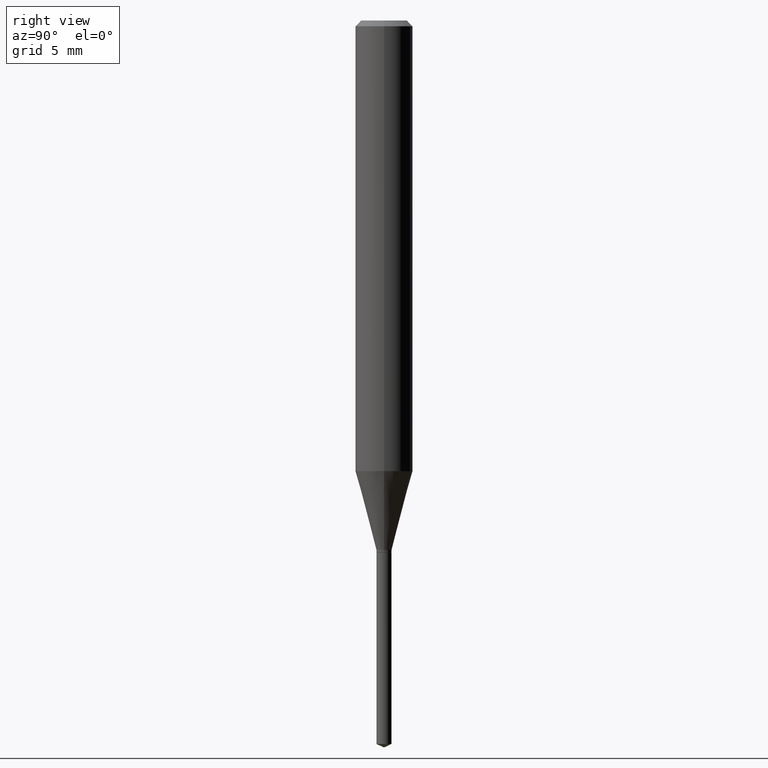
[diagram: clean part render]
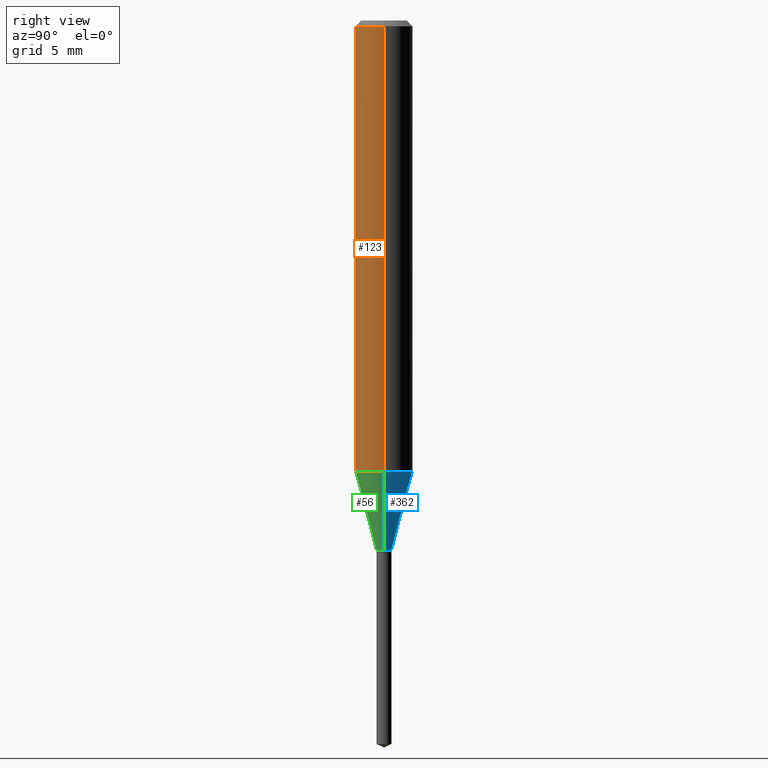
[diagram: same view with three faces highlighted in distinct colors, each labeled with its STEP entity id]
A machine part, right view with three faces highlighted in distinct colors.
Their STEP definitions:

[orange] entity #123 — the highlighted cylindrical surface (edge-blend (fillet) strip) has radius 1.4999 mm, axis along (-0, 0, 1).
#2 = CARTESIAN_POINT ( 'NONE',  ( -0.05905000000000005383, 4.195754854663395423E-16, -2.904631170795524694E-30 ) ) ;
#12 = DIRECTION ( 'NONE',  ( 1.000000000000000000, -6.982962677686266711E-15, 4.876176775795935793E-29 ) ) ;
#14 = DIRECTION ( 'NONE',  ( -2.445468806185136597E-29, 3.491481338843145583E-15, 1.000000000000000000 ) ) ;
#33 = DIRECTION ( 'NONE',  ( -2.445468806185136877E-29, 3.491481338843145188E-15, 1.000000000000000000 ) ) ;
#37 = AXIS2_PLACEMENT_3D ( 'NONE', #39, #235, #12 ) ;
#39 = CARTESIAN_POINT ( 'NONE',  ( 0.000000000000000000, 0.000000000000000000, 0.000000000000000000 ) ) ;
#61 = ORIENTED_EDGE ( 'NONE', *, *, #67, .T. ) ;
#67 = EDGE_CURVE ( 'NONE', #368, #213, #76, .T. ) ;
#76 = LINE ( 'NONE', #382, #175 ) ;
#84 = CARTESIAN_POINT ( 'NONE',  ( -0.05904999999999999832, -1.220139003307412078E-15, -0.01181000000000007044 ) ) ;
#110 = DIRECTION ( 'NONE',  ( -2.445468806185136877E-29, 3.491481338843145188E-15, 1.000000000000000000 ) ) ;
#117 = CIRCLE ( 'NONE', #440, 0.05905000000000010935 ) ;
#119 = VERTEX_POINT ( 'NONE', #84 ) ;
#122 = CARTESIAN_POINT ( 'NONE',  ( 0.05904999999999999832, -4.535783407291118600E-16, -0.01181000000000007044 ) ) ;
#123 = ADVANCED_FACE ( 'NONE', ( #321 ), #390, .T. ) ;
#130 = ORIENTED_EDGE ( 'NONE', *, *, #460, .T. ) ;
#144 = LINE ( 'NONE', #2, #199 ) ;
#150 = ORIENTED_EDGE ( 'NONE', *, *, #243, .F. ) ;
#151 = CIRCLE ( 'NONE', #215, 0.05904999999999999832 ) ;
#175 = VECTOR ( 'NONE', #33, 39.37007874015748143 ) ;
#181 = DIRECTION ( 'NONE',  ( 1.000000000000000000, -6.982962677686267499E-15, 0.000000000000000000 ) ) ;
#199 = VECTOR ( 'NONE', #110, 39.37007874015748143 ) ;
#213 = VERTEX_POINT ( 'NONE', #122 ) ;
#215 = AXIS2_PLACEMENT_3D ( 'NONE', #394, #14, #273 ) ;
#235 = DIRECTION ( 'NONE',  ( -2.445468806185136597E-29, 3.491481338843145583E-15, 1.000000000000000000 ) ) ;
#243 = EDGE_CURVE ( 'NONE', #119, #213, #151, .T. ) ;
#264 = VERTEX_POINT ( 'NONE', #280 ) ;
#273 = DIRECTION ( 'NONE',  ( 1.000000000000000000, -6.982962677686266711E-15, 0.000000000000000000 ) ) ;
#280 = CARTESIAN_POINT ( 'NONE',  ( -0.05905000000000010935, -2.818619097469426315E-15, -0.9274557898707536108 ) ) ;
#321 = FACE_OUTER_BOUND ( 'NONE', #453, .T. ) ;
#368 = VERTEX_POINT ( 'NONE', #371 ) ;
#371 = CARTESIAN_POINT ( 'NONE',  ( 0.05905000000000010935, -3.650538529053141123E-15, -0.9274557898707536108 ) ) ;
#374 = CARTESIAN_POINT ( 'NONE',  ( 2.268064203244724858E-29, -3.238194582935765808E-15, -0.9274557898707536108 ) ) ;
#382 = CARTESIAN_POINT ( 'NONE',  ( 0.05905000000000005383, -4.123439461173744271E-16, 2.879382386107502672E-30 ) ) ;
#390 = CYLINDRICAL_SURFACE ( 'NONE', #37, 0.05905000000000005383 ) ;
#394 = CARTESIAN_POINT ( 'NONE',  ( 2.888098660104663766E-31, -4.123439461173779647E-17, -0.01181000000000007044 ) ) ;
#419 = ORIENTED_EDGE ( 'NONE', *, *, #464, .F. ) ;
#440 = AXIS2_PLACEMENT_3D ( 'NONE', #374, #445, #181 ) ;
#445 = DIRECTION ( 'NONE',  ( -2.445468806185136597E-29, 3.491481338843145583E-15, 1.000000000000000000 ) ) ;
#453 = EDGE_LOOP ( 'NONE', ( #419, #130, #61, #150 ) ) ;
#460 = EDGE_CURVE ( 'NONE', #264, #368, #117, .T. ) ;
#464 = EDGE_CURVE ( 'NONE', #264, #119, #144, .T. ) ;

[blue] entity #362 — the highlighted conical surface has half-angle 15 deg.
#4 = CIRCLE ( 'NONE', #17, 0.01554999999999999959 ) ;
#16 = ORIENTED_EDGE ( 'NONE', *, *, #289, .F. ) ;
#17 = AXIS2_PLACEMENT_3D ( 'NONE', #164, #421, #234 ) ;
#54 = ORIENTED_EDGE ( 'NONE', *, *, #250, .T. ) ;
#57 = FACE_OUTER_BOUND ( 'NONE', #343, .T. ) ;
#62 = EDGE_CURVE ( 'NONE', #145, #264, #143, .T. ) ;
#63 = DIRECTION ( 'NONE',  ( 1.000000000000000000, -6.982962677686261189E-15, 0.000000000000000000 ) ) ;
#94 = DIRECTION ( 'NONE',  ( -2.445468806185136597E-29, 3.491481338843145583E-15, 1.000000000000000000 ) ) ;
#99 = VECTOR ( 'NONE', #196, 39.37007874015748854 ) ;
#120 = CARTESIAN_POINT ( 'NONE',  ( 0.01554999999999999959, -3.913601432709281317E-15, -1.089799999999999880 ) ) ;
#125 = LINE ( 'NONE', #120, #99 ) ;
#143 = LINE ( 'NONE', #448, #297 ) ;
#145 = VERTEX_POINT ( 'NONE', #154 ) ;
#146 = EDGE_CURVE ( 'NONE', #403, #368, #125, .T. ) ;
#154 = CARTESIAN_POINT ( 'NONE',  ( -0.01554999999999999959, -3.701859078472134923E-15, -1.089799999999999880 ) ) ;
#164 = CARTESIAN_POINT ( 'NONE',  ( 2.665071904980561815E-29, -3.805016363071259851E-15, -1.089799999999999880 ) ) ;
#169 = DIRECTION ( 'NONE',  ( 1.000000000000000000, -6.982962677686267499E-15, 0.000000000000000000 ) ) ;
#182 = ORIENTED_EDGE ( 'NONE', *, *, #146, .F. ) ;
#196 = DIRECTION ( 'NONE',  ( 0.2588190451025211281, 1.565188264969622954E-15, 0.9659258262890679791 ) ) ;
#206 = AXIS2_PLACEMENT_3D ( 'NONE', #365, #94, #169 ) ;
#228 = DIRECTION ( 'NONE',  ( -0.2588190451025211281, 5.211531920934547886E-15, 0.9659258262890679791 ) ) ;
#234 = DIRECTION ( 'NONE',  ( 1.000000000000000000, -6.982962677686261189E-15, 0.000000000000000000 ) ) ;
#250 = EDGE_CURVE ( 'NONE', #403, #145, #4, .T. ) ;
#264 = VERTEX_POINT ( 'NONE', #280 ) ;
#280 = CARTESIAN_POINT ( 'NONE',  ( -0.05905000000000010935, -2.818619097469426315E-15, -0.9274557898707536108 ) ) ;
#289 = EDGE_CURVE ( 'NONE', #368, #264, #344, .T. ) ;
#297 = VECTOR ( 'NONE', #228, 39.37007874015748854 ) ;
#325 = CARTESIAN_POINT ( 'NONE',  ( 2.665071904980561815E-29, -3.805016363071259851E-15, -1.089799999999999880 ) ) ;
#343 = EDGE_LOOP ( 'NONE', ( #54, #446, #16, #182 ) ) ;
#344 = CIRCLE ( 'NONE', #206, 0.05905000000000010935 ) ;
#362 = ADVANCED_FACE ( 'NONE', ( #57 ), #369, .T. ) ;
#365 = CARTESIAN_POINT ( 'NONE',  ( 2.268064203244724858E-29, -3.238194582935765808E-15, -0.9274557898707536108 ) ) ;
#368 = VERTEX_POINT ( 'NONE', #371 ) ;
#369 = CONICAL_SURFACE ( 'NONE', #417, 0.01554999999999999959, 0.2617993877991498519 ) ;
#371 = CARTESIAN_POINT ( 'NONE',  ( 0.05905000000000010935, -3.650538529053141123E-15, -0.9274557898707536108 ) ) ;
#403 = VERTEX_POINT ( 'NONE', #473 ) ;
#417 = AXIS2_PLACEMENT_3D ( 'NONE', #325, #441, #63 ) ;
#421 = DIRECTION ( 'NONE',  ( -2.445468806185136597E-29, 3.491481338843145583E-15, 1.000000000000000000 ) ) ;
#441 = DIRECTION ( 'NONE',  ( -2.445468806185136597E-29, 3.491481338843145583E-15, 1.000000000000000000 ) ) ;
#446 = ORIENTED_EDGE ( 'NONE', *, *, #62, .T. ) ;
#448 = CARTESIAN_POINT ( 'NONE',  ( -0.01554999999999999959, -3.694526967660564608E-15, -1.089799999999999880 ) ) ;
#473 = CARTESIAN_POINT ( 'NONE',  ( 0.01554999999999999959, -3.913601432709281317E-15, -1.089799999999999880 ) ) ;

[green] entity #56 — the highlighted conical surface has half-angle 15 deg.
#1 = DIRECTION ( 'NONE',  ( 1.000000000000000000, -6.982962677686261189E-15, 0.000000000000000000 ) ) ;
#56 = ADVANCED_FACE ( 'NONE', ( #115 ), #315, .T. ) ;
#62 = EDGE_CURVE ( 'NONE', #145, #264, #143, .T. ) ;
#73 = AXIS2_PLACEMENT_3D ( 'NONE', #389, #236, #425 ) ;
#85 = EDGE_CURVE ( 'NONE', #145, #403, #322, .T. ) ;
#99 = VECTOR ( 'NONE', #196, 39.37007874015748854 ) ;
#113 = ORIENTED_EDGE ( 'NONE', *, *, #85, .T. ) ;
#115 = FACE_OUTER_BOUND ( 'NONE', #302, .T. ) ;
#117 = CIRCLE ( 'NONE', #440, 0.05905000000000010935 ) ;
#120 = CARTESIAN_POINT ( 'NONE',  ( 0.01554999999999999959, -3.913601432709281317E-15, -1.089799999999999880 ) ) ;
#125 = LINE ( 'NONE', #120, #99 ) ;
#143 = LINE ( 'NONE', #448, #297 ) ;
#145 = VERTEX_POINT ( 'NONE', #154 ) ;
#146 = EDGE_CURVE ( 'NONE', #403, #368, #125, .T. ) ;
#154 = CARTESIAN_POINT ( 'NONE',  ( -0.01554999999999999959, -3.701859078472134923E-15, -1.089799999999999880 ) ) ;
#181 = DIRECTION ( 'NONE',  ( 1.000000000000000000, -6.982962677686267499E-15, 0.000000000000000000 ) ) ;
#196 = DIRECTION ( 'NONE',  ( 0.2588190451025211281, 1.565188264969622954E-15, 0.9659258262890679791 ) ) ;
#228 = DIRECTION ( 'NONE',  ( -0.2588190451025211281, 5.211531920934547886E-15, 0.9659258262890679791 ) ) ;
#236 = DIRECTION ( 'NONE',  ( -2.445468806185136597E-29, 3.491481338843145583E-15, 1.000000000000000000 ) ) ;
#264 = VERTEX_POINT ( 'NONE', #280 ) ;
#280 = CARTESIAN_POINT ( 'NONE',  ( -0.05905000000000010935, -2.818619097469426315E-15, -0.9274557898707536108 ) ) ;
#281 = ORIENTED_EDGE ( 'NONE', *, *, #146, .T. ) ;
#293 = ORIENTED_EDGE ( 'NONE', *, *, #460, .F. ) ;
#297 = VECTOR ( 'NONE', #228, 39.37007874015748854 ) ;
#298 = DIRECTION ( 'NONE',  ( -2.445468806185136597E-29, 3.491481338843145583E-15, 1.000000000000000000 ) ) ;
#302 = EDGE_LOOP ( 'NONE', ( #442, #113, #281, #293 ) ) ;
#315 = CONICAL_SURFACE ( 'NONE', #470, 0.01554999999999999959, 0.2617993877991498519 ) ;
#322 = CIRCLE ( 'NONE', #73, 0.01554999999999999959 ) ;
#368 = VERTEX_POINT ( 'NONE', #371 ) ;
#371 = CARTESIAN_POINT ( 'NONE',  ( 0.05905000000000010935, -3.650538529053141123E-15, -0.9274557898707536108 ) ) ;
#374 = CARTESIAN_POINT ( 'NONE',  ( 2.268064203244724858E-29, -3.238194582935765808E-15, -0.9274557898707536108 ) ) ;
#389 = CARTESIAN_POINT ( 'NONE',  ( 2.665071904980561815E-29, -3.805016363071259851E-15, -1.089799999999999880 ) ) ;
#403 = VERTEX_POINT ( 'NONE', #473 ) ;
#418 = CARTESIAN_POINT ( 'NONE',  ( 2.665071904980561815E-29, -3.805016363071259851E-15, -1.089799999999999880 ) ) ;
#425 = DIRECTION ( 'NONE',  ( 1.000000000000000000, -6.982962677686261189E-15, 0.000000000000000000 ) ) ;
#440 = AXIS2_PLACEMENT_3D ( 'NONE', #374, #445, #181 ) ;
#442 = ORIENTED_EDGE ( 'NONE', *, *, #62, .F. ) ;
#445 = DIRECTION ( 'NONE',  ( -2.445468806185136597E-29, 3.491481338843145583E-15, 1.000000000000000000 ) ) ;
#448 = CARTESIAN_POINT ( 'NONE',  ( -0.01554999999999999959, -3.694526967660564608E-15, -1.089799999999999880 ) ) ;
#460 = EDGE_CURVE ( 'NONE', #264, #368, #117, .T. ) ;
#470 = AXIS2_PLACEMENT_3D ( 'NONE', #418, #298, #1 ) ;
#473 = CARTESIAN_POINT ( 'NONE',  ( 0.01554999999999999959, -3.913601432709281317E-15, -1.089799999999999880 ) ) ;